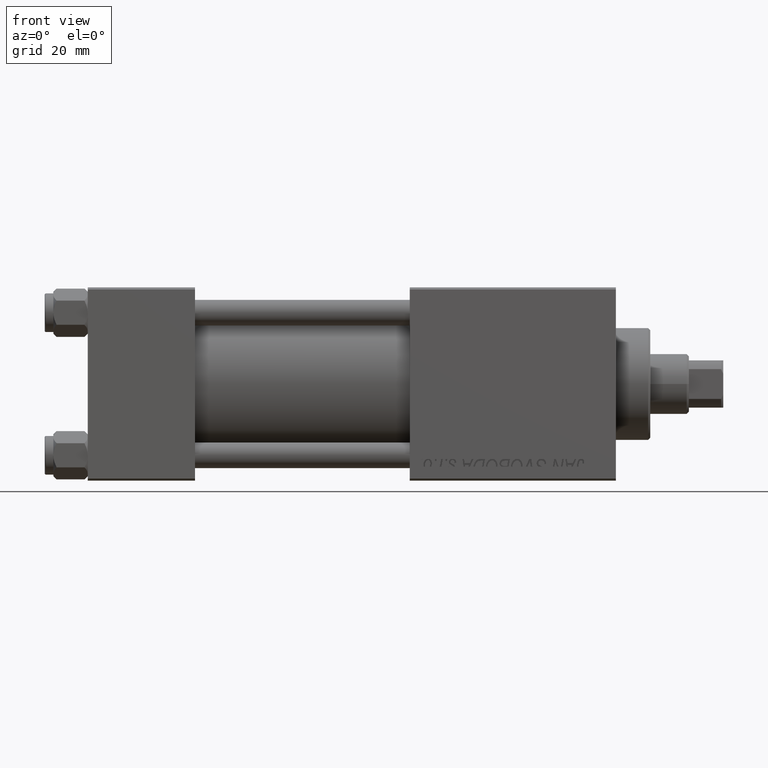
[diagram: clean part render]
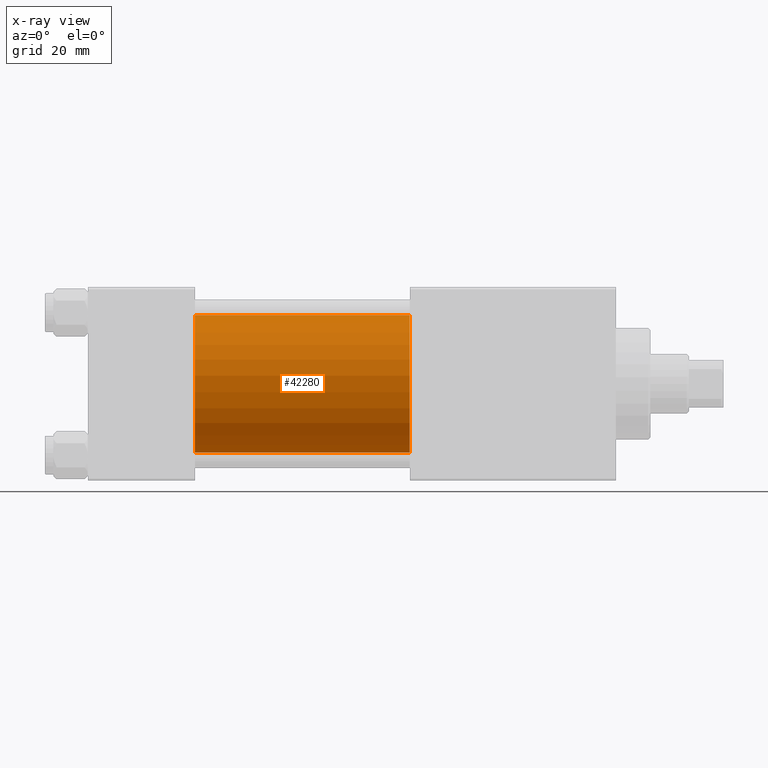
[diagram: x-ray — body ghosted, one internal face saturated and labeled with its STEP entity id]
A machine part, front view, then the same camera in x-ray: the body is ghosted and one INTERNAL B-rep face — a face not visible from any outside direction — is saturated and labeled: STEP entity #42280.
In plain terms, the highlighted cylindrical surface (partial cylindrical patch) has radius 16 mm, axis along (-1, -0, -0).
Its self-contained STEP definition (entity closure, byte-faithful):
#1521 = LINE ( 'NONE', #9385, #48582 ) ;
#1941 = CARTESIAN_POINT ( 'NONE',  ( 75.00000000000001421, -6.426503353294456087E-16, -16.00000000000000000 ) ) ;
#2437 = DIRECTION ( 'NONE',  ( -1.000000000000000000, -0.000000000000000000, -0.000000000000000000 ) ) ;
#3920 = ORIENTED_EDGE ( 'NONE', *, *, #8818, .T. ) ;
#5078 = DIRECTION ( 'NONE',  ( -1.000000000000000000, -0.000000000000000000, -0.000000000000000000 ) ) ;
#5124 = AXIS2_PLACEMENT_3D ( 'NONE', #27110, #22805, #31171 ) ;
#5882 = CIRCLE ( 'NONE', #48844, 16.00000000000000000 ) ;
#6809 = EDGE_LOOP ( 'NONE', ( #35537, #3920, #26311, #16432 ) ) ;
#7236 = VERTEX_POINT ( 'NONE', #13577 ) ;
#7760 = EDGE_CURVE ( 'NONE', #7236, #39858, #1521, .T. ) ;
#8818 = EDGE_CURVE ( 'NONE', #20913, #31685, #10560, .T. ) ;
#8920 = VECTOR ( 'NONE', #2437, 1000.000000000000000 ) ;
#9385 = CARTESIAN_POINT ( 'NONE',  ( 75.00000000000001421, -2.602085213965210642E-15, 16.00000000000000000 ) ) ;
#10154 = CARTESIAN_POINT ( 'NONE',  ( 25.00000000000000000, -2.602085213965210642E-15, 0.000000000000000000 ) ) ;
#10560 = LINE ( 'NONE', #1941, #8920 ) ;
#13577 = CARTESIAN_POINT ( 'NONE',  ( 75.00000000000001421, -2.602085213965210642E-15, 16.00000000000000000 ) ) ;
#14567 = AXIS2_PLACEMENT_3D ( 'NONE', #23784, #23525, #35191 ) ;
#15688 = CYLINDRICAL_SURFACE ( 'NONE', #5124, 16.00000000000000000 ) ;
#15729 = CARTESIAN_POINT ( 'NONE',  ( 75.00000000000001421, -6.426503353294456087E-16, -16.00000000000000000 ) ) ;
#16432 = ORIENTED_EDGE ( 'NONE', *, *, #7760, .F. ) ;
#16497 = CARTESIAN_POINT ( 'NONE',  ( 25.00000000000000000, -2.602085213965210642E-15, 16.00000000000000000 ) ) ;
#17526 = DIRECTION ( 'NONE',  ( 1.000000000000000000, 0.000000000000000000, 0.000000000000000000 ) ) ;
#18040 = DIRECTION ( 'NONE',  ( 0.000000000000000000, 0.000000000000000000, -1.000000000000000000 ) ) ;
#20913 = VERTEX_POINT ( 'NONE', #15729 ) ;
#22805 = DIRECTION ( 'NONE',  ( -1.000000000000000000, -0.000000000000000000, -0.000000000000000000 ) ) ;
#23525 = DIRECTION ( 'NONE',  ( 1.000000000000000000, 0.000000000000000000, 0.000000000000000000 ) ) ;
#23784 = CARTESIAN_POINT ( 'NONE',  ( 75.00000000000001421, -2.602085213965210642E-15, 0.000000000000000000 ) ) ;
#25089 = CIRCLE ( 'NONE', #14567, 16.00000000000000000 ) ;
#26311 = ORIENTED_EDGE ( 'NONE', *, *, #44501, .F. ) ;
#27110 = CARTESIAN_POINT ( 'NONE',  ( 75.00000000000001421, -2.602085213965210642E-15, 0.000000000000000000 ) ) ;
#31171 = DIRECTION ( 'NONE',  ( 0.000000000000000000, 0.000000000000000000, 1.000000000000000000 ) ) ;
#31685 = VERTEX_POINT ( 'NONE', #37687 ) ;
#32369 = EDGE_CURVE ( 'NONE', #7236, #20913, #25089, .T. ) ;
#34970 = FACE_OUTER_BOUND ( 'NONE', #6809, .T. ) ;
#35191 = DIRECTION ( 'NONE',  ( 0.000000000000000000, 0.000000000000000000, -1.000000000000000000 ) ) ;
#35537 = ORIENTED_EDGE ( 'NONE', *, *, #32369, .T. ) ;
#37687 = CARTESIAN_POINT ( 'NONE',  ( 25.00000000000000000, -6.426503353294456087E-16, -16.00000000000000000 ) ) ;
#39858 = VERTEX_POINT ( 'NONE', #16497 ) ;
#42280 = ADVANCED_FACE ( 'NONE', ( #34970 ), #15688, .F. ) ;
#44501 = EDGE_CURVE ( 'NONE', #39858, #31685, #5882, .T. ) ;
#48582 = VECTOR ( 'NONE', #5078, 1000.000000000000000 ) ;
#48844 = AXIS2_PLACEMENT_3D ( 'NONE', #10154, #17526, #18040 ) ;